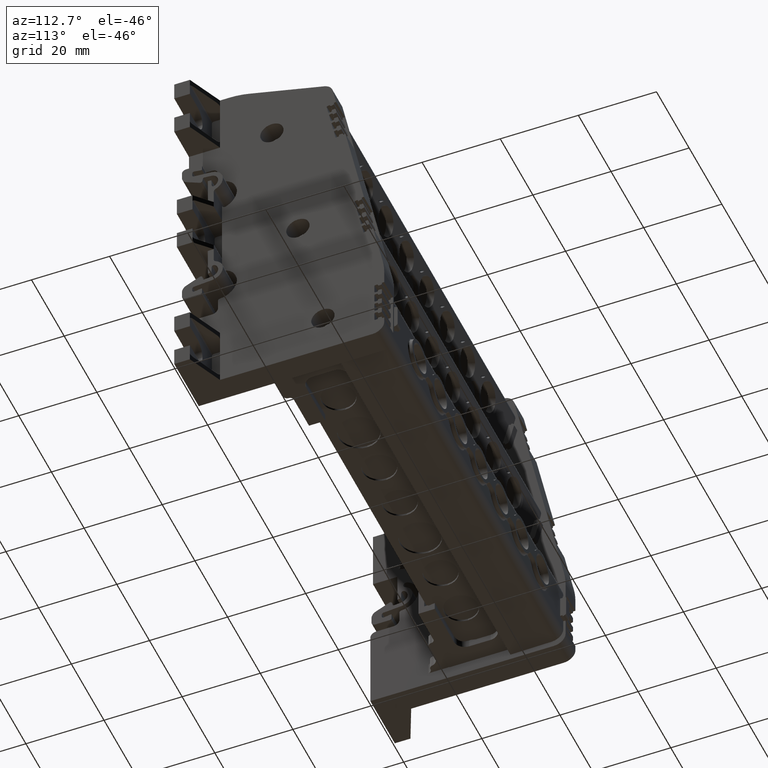
[diagram: clean part render]
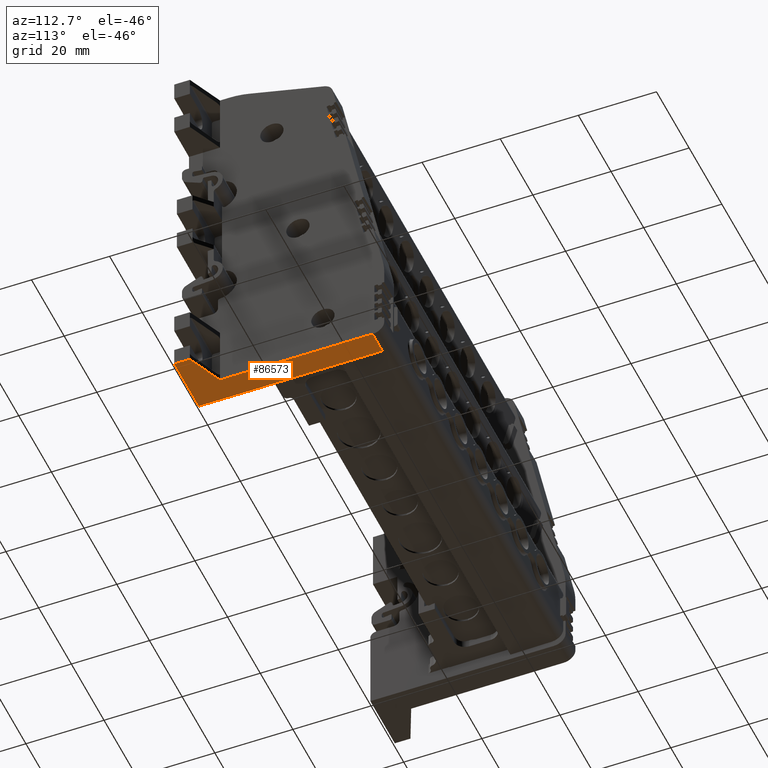
[diagram: same view with one face highlighted and labeled with its STEP entity id]
A machine part, auxiliary view. The second image highlights one B-rep face of the part: STEP entity #86573.
In plain terms, the highlighted planar face has unit normal (-0, 0, 1).
Its self-contained STEP definition (entity closure, byte-faithful):
#8298 = AXIS2_PLACEMENT_3D ( 'NONE', #16440, #16468, #16488 ) ;
#16440 = CARTESIAN_POINT ( 'NONE',  ( 50.19805696747450700, 264.4796998339850800, -44.32685117816684800 ) ) ;
#16468 = DIRECTION ( 'NONE',  ( -3.838020475372775300E-015, 3.399780942277950500E-030, 1.000000000000000000 ) ) ;
#16478 = FACE_OUTER_BOUND ( 'NONE', #38124, .T. ) ;
#16485 = PLANE ( 'NONE',  #8298 ) ;
#16488 = DIRECTION ( 'NONE',  ( 1.000000000000000000, 0.0000000000000000000, 3.838020475372775300E-015 ) ) ;
#29228 = CARTESIAN_POINT ( 'NONE',  ( 59.19805696747343400, 264.4796998339850800, -44.32685117816681200 ) ) ;
#29237 = LINE ( 'NONE', #29228, #44924 ) ;
#29258 = DIRECTION ( 'NONE',  ( 1.304842886824492100E-044, 1.000000000000000000, -3.399780942277950500E-030 ) ) ;
#38124 = EDGE_LOOP ( 'NONE', ( #52236, #52047, #52182, #52143, #52173, #52189 ) ) ;
#39470 = CARTESIAN_POINT ( 'NONE',  ( 50.19805696747445000, 247.4271413932964100, -44.32685117816684800 ) ) ;
#39499 = CARTESIAN_POINT ( 'NONE',  ( 50.19805696747452100, 286.4796993914182500, -44.32685117816688300 ) ) ;
#39556 = CARTESIAN_POINT ( 'NONE',  ( 59.19805696747343400, 239.4797002765546700, -44.32685117816683400 ) ) ;
#39566 = CARTESIAN_POINT ( 'NONE',  ( 59.19805696747344100, 243.4797002765523900, -44.32685117816682000 ) ) ;
#39595 = CARTESIAN_POINT ( 'NONE',  ( 44.19805696747518200, 286.4796993914182500, -44.32685117816689100 ) ) ;
#39630 = CARTESIAN_POINT ( 'NONE',  ( 44.19805696747509700, 239.4797002765545800, -44.32685117816684800 ) ) ;
#39988 = DIRECTION ( 'NONE',  ( 9.125357139845370400E-016, 1.000000000000000000, 3.482289613424945200E-030 ) ) ;
#39989 = LINE ( 'NONE', #40012, #44931 ) ;
#40006 = LINE ( 'NONE', #40015, #44914 ) ;
#40012 = CARTESIAN_POINT ( 'NONE',  ( 50.19805696747446400, 264.4796998339850800, -44.32685117816684800 ) ) ;
#40015 = CARTESIAN_POINT ( 'NONE',  ( 44.19805696747513900, 264.4796998339850800, -44.32685117816684800 ) ) ;
#40025 = DIRECTION ( 'NONE',  ( -9.125357139845370400E-016, -1.000000000000000000, -3.482289613424945200E-030 ) ) ;
#40033 = LINE ( 'NONE', #40123, #44885 ) ;
#40123 = CARTESIAN_POINT ( 'NONE',  ( 50.19805696747460600, 239.4797002765545800, -44.32685117816684800 ) ) ;
#40184 = DIRECTION ( 'NONE',  ( 1.000000000000000000, -8.872512669848432000E-016, -7.908148664084755600E-029 ) ) ;
#40493 = CARTESIAN_POINT ( 'NONE',  ( 50.19805696747452100, 286.4796993914182500, -44.32685117816691200 ) ) ;
#40497 = LINE ( 'NONE', #40493, #44948 ) ;
#40511 = DIRECTION ( 'NONE',  ( -1.000000000000000000, 8.872512669851850700E-016, -3.838020475372775300E-015 ) ) ;
#40521 = CARTESIAN_POINT ( 'NONE',  ( 59.19805696747343400, 243.4797002765523600, -44.32685117816681200 ) ) ;
#42694 = LINE ( 'NONE', #40521, #44910 ) ;
#42932 = DIRECTION ( 'NONE',  ( -0.9157854878567139900, 0.4016676987648374900, -3.530299077209121300E-015 ) ) ;
#44885 = VECTOR ( 'NONE', #40184, 1000.000000000000000 ) ;
#44910 = VECTOR ( 'NONE', #42932, 1000.000000000000100 ) ;
#44914 = VECTOR ( 'NONE', #40025, 1000.000000000000000 ) ;
#44924 = VECTOR ( 'NONE', #29258, 1000.000000000000000 ) ;
#44931 = VECTOR ( 'NONE', #39988, 1000.000000000000000 ) ;
#44948 = VECTOR ( 'NONE', #40511, 1000.000000000000000 ) ;
#52047 = ORIENTED_EDGE ( 'NONE', *, *, #87557, .F. ) ;
#52143 = ORIENTED_EDGE ( 'NONE', *, *, #87531, .F. ) ;
#52173 = ORIENTED_EDGE ( 'NONE', *, *, #87523, .F. ) ;
#52182 = ORIENTED_EDGE ( 'NONE', *, *, #87545, .F. ) ;
#52189 = ORIENTED_EDGE ( 'NONE', *, *, #87530, .F. ) ;
#52236 = ORIENTED_EDGE ( 'NONE', *, *, #87547, .F. ) ;
#71857 = VERTEX_POINT ( 'NONE', #39470 ) ;
#71866 = VERTEX_POINT ( 'NONE', #39499 ) ;
#71905 = VERTEX_POINT ( 'NONE', #39566 ) ;
#71924 = VERTEX_POINT ( 'NONE', #39556 ) ;
#71934 = VERTEX_POINT ( 'NONE', #39595 ) ;
#71972 = VERTEX_POINT ( 'NONE', #39630 ) ;
#86573 = ADVANCED_FACE ( 'NONE', ( #16478 ), #16485, .F. ) ;
#87523 = EDGE_CURVE ( 'NONE', #71866, #71934, #40497, .T. ) ;
#87530 = EDGE_CURVE ( 'NONE', #71857, #71866, #39989, .T. ) ;
#87531 = EDGE_CURVE ( 'NONE', #71934, #71972, #40006, .T. ) ;
#87545 = EDGE_CURVE ( 'NONE', #71972, #71924, #40033, .T. ) ;
#87547 = EDGE_CURVE ( 'NONE', #71905, #71857, #42694, .T. ) ;
#87557 = EDGE_CURVE ( 'NONE', #71924, #71905, #29237, .T. ) ;